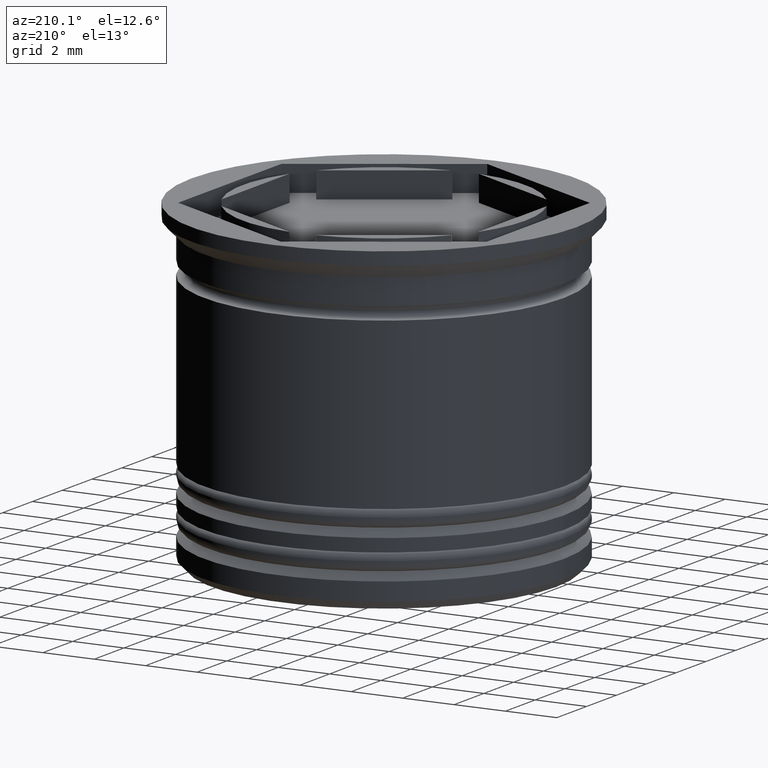
[diagram: clean part render]
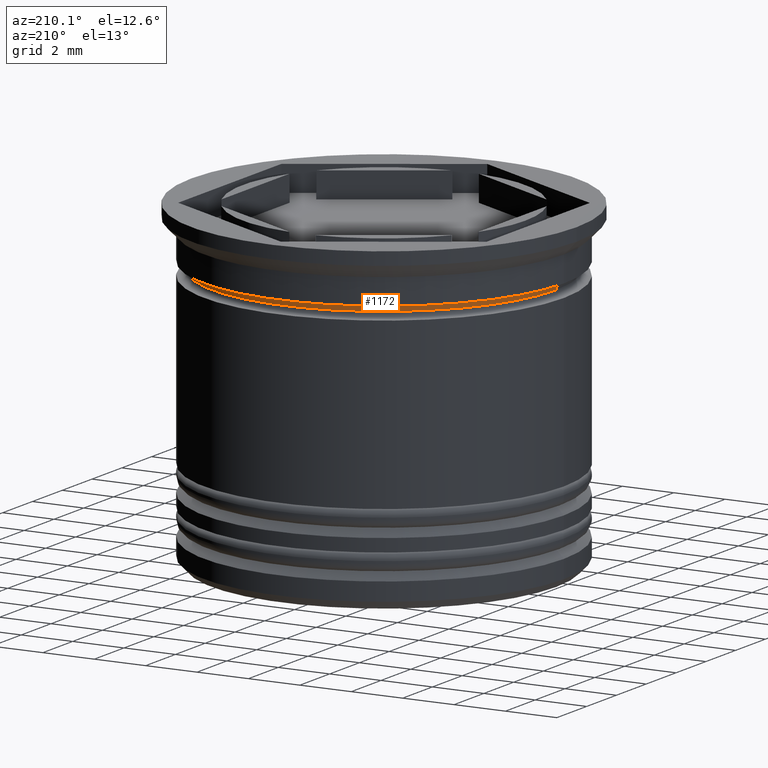
[diagram: same view with one face highlighted and labeled with its STEP entity id]
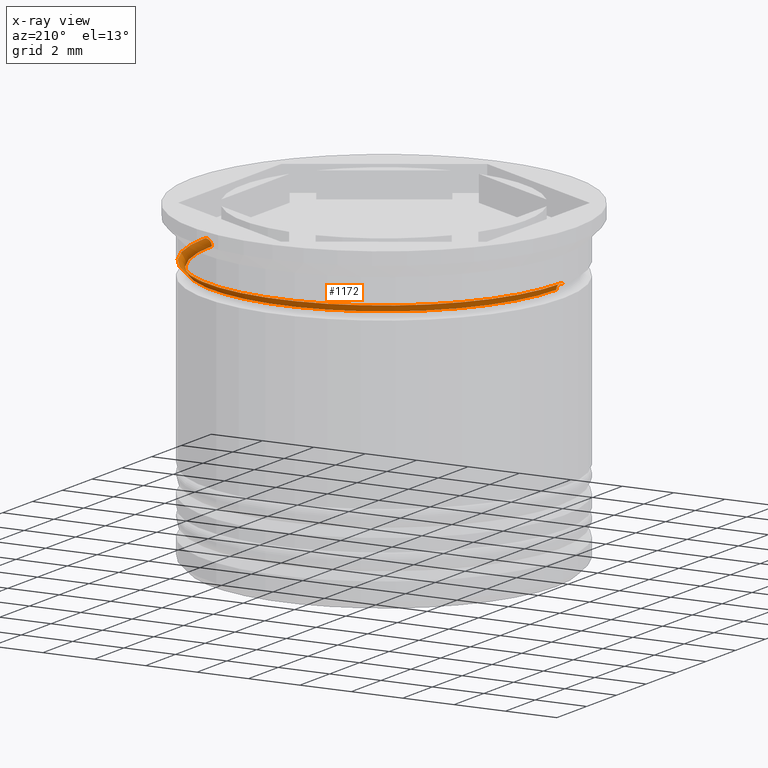
[diagram: x-ray of the same camera — body ghosted, the highlighted face saturated]
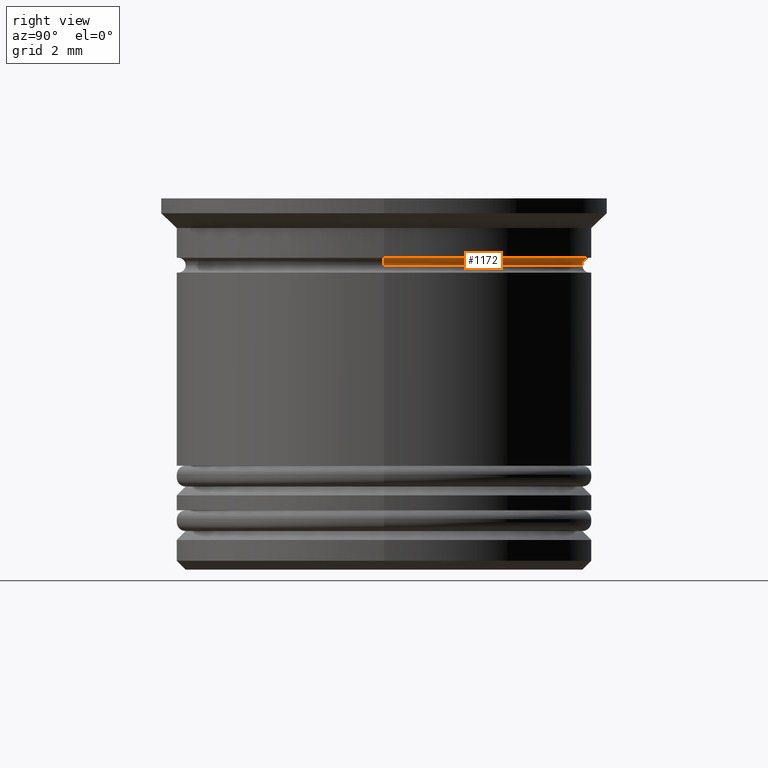
[diagram: same view with one face highlighted and labeled with its STEP entity id]
A machine part, auxiliary view. The second image highlights one B-rep face of the part: STEP entity #1172.
The next image is the same camera in x-ray: the body ghosted, the highlighted face saturated — about 13% of this face is hidden behind the body in this view.
A second angle (right view) of the same face is appended — the face is thin or edge-on in the first view.
In plain terms, the highlighted toroidal blend (fillet) surface has major radius 6.95 mm and minor (blend) radius 0.25 mm.
Its self-contained STEP definition (entity closure, byte-faithful):
#327 = CARTESIAN_POINT ( 'NONE',  ( 6.950000000000000178, 0.000000000000000000, -2.000000000000000000 ) ) ;
#339 = VERTEX_POINT ( 'NONE', #327 ) ;
#353 = ORIENTED_EDGE ( 'NONE', *, *, #897, .F. ) ;
#354 = CARTESIAN_POINT ( 'NONE',  ( -6.950000000000000178, 8.511295254074105418E-16, -2.000000000000000000 ) ) ;
#397 = AXIS2_PLACEMENT_3D ( 'NONE', #655, #1941, #1304 ) ;
#400 = TOROIDAL_SURFACE ( 'NONE', #1314, 6.950000000000000178, 0.2500000000000002220 ) ;
#518 = CIRCLE ( 'NONE', #1279, 6.950000000000000178 ) ;
#576 = EDGE_CURVE ( 'NONE', #1966, #1978, #770, .T. ) ;
#583 = CIRCLE ( 'NONE', #397, 0.2500000000000002220 ) ;
#654 = ORIENTED_EDGE ( 'NONE', *, *, #885, .F. ) ;
#655 = CARTESIAN_POINT ( 'NONE',  ( -6.950000000000000178, 8.511295254074105418E-16, -2.250000000000000444 ) ) ;
#689 = CARTESIAN_POINT ( 'NONE',  ( 0.000000000000000000, 0.000000000000000000, -2.250000000000000444 ) ) ;
#711 = DIRECTION ( 'NONE',  ( -0.000000000000000000, -0.000000000000000000, 1.000000000000000000 ) ) ;
#713 = DIRECTION ( 'NONE',  ( -0.000000000000000000, -0.000000000000000000, 1.000000000000000000 ) ) ;
#770 = CIRCLE ( 'NONE', #1897, 6.700000000000000178 ) ;
#816 = VERTEX_POINT ( 'NONE', #354 ) ;
#864 = EDGE_LOOP ( 'NONE', ( #917, #1551, #353, #654 ) ) ;
#885 = EDGE_CURVE ( 'NONE', #339, #816, #518, .T. ) ;
#897 = EDGE_CURVE ( 'NONE', #816, #1978, #583, .T. ) ;
#917 = ORIENTED_EDGE ( 'NONE', *, *, #1801, .T. ) ;
#1027 = CARTESIAN_POINT ( 'NONE',  ( 6.700000000000000178, 0.000000000000000000, -2.250000000000000444 ) ) ;
#1035 = CIRCLE ( 'NONE', #1744, 0.2500000000000002220 ) ;
#1057 = DIRECTION ( 'NONE',  ( 0.000000000000000000, 0.000000000000000000, -1.000000000000000000 ) ) ;
#1172 = ADVANCED_FACE ( 'NONE', ( #1517 ), #400, .F. ) ;
#1254 = DIRECTION ( 'NONE',  ( -0.000000000000000000, -0.000000000000000000, 1.000000000000000000 ) ) ;
#1279 = AXIS2_PLACEMENT_3D ( 'NONE', #1415, #1254, #1881 ) ;
#1293 = DIRECTION ( 'NONE',  ( 1.000000000000000000, 0.000000000000000000, 0.000000000000000000 ) ) ;
#1304 = DIRECTION ( 'NONE',  ( -1.000000000000000000, 1.224646799147353454E-16, 0.000000000000000000 ) ) ;
#1314 = AXIS2_PLACEMENT_3D ( 'NONE', #1799, #711, #1656 ) ;
#1415 = CARTESIAN_POINT ( 'NONE',  ( 0.000000000000000000, 0.000000000000000000, -2.000000000000000000 ) ) ;
#1416 = CARTESIAN_POINT ( 'NONE',  ( -6.700000000000000178, 8.205133554287266562E-16, -2.250000000000000444 ) ) ;
#1517 = FACE_OUTER_BOUND ( 'NONE', #864, .T. ) ;
#1551 = ORIENTED_EDGE ( 'NONE', *, *, #576, .T. ) ;
#1656 = DIRECTION ( 'NONE',  ( 1.000000000000000000, 0.000000000000000000, 0.000000000000000000 ) ) ;
#1690 = CARTESIAN_POINT ( 'NONE',  ( 6.950000000000000178, 0.000000000000000000, -2.250000000000000444 ) ) ;
#1744 = AXIS2_PLACEMENT_3D ( 'NONE', #1690, #1823, #1057 ) ;
#1799 = CARTESIAN_POINT ( 'NONE',  ( 0.000000000000000000, 0.000000000000000000, -2.250000000000000444 ) ) ;
#1801 = EDGE_CURVE ( 'NONE', #339, #1966, #1035, .T. ) ;
#1823 = DIRECTION ( 'NONE',  ( 0.000000000000000000, -1.000000000000000000, 0.000000000000000000 ) ) ;
#1881 = DIRECTION ( 'NONE',  ( 1.000000000000000000, 0.000000000000000000, 0.000000000000000000 ) ) ;
#1897 = AXIS2_PLACEMENT_3D ( 'NONE', #689, #713, #1293 ) ;
#1941 = DIRECTION ( 'NONE',  ( 1.224646799147353207E-16, 1.000000000000000000, 0.000000000000000000 ) ) ;
#1966 = VERTEX_POINT ( 'NONE', #1027 ) ;
#1978 = VERTEX_POINT ( 'NONE', #1416 ) ;